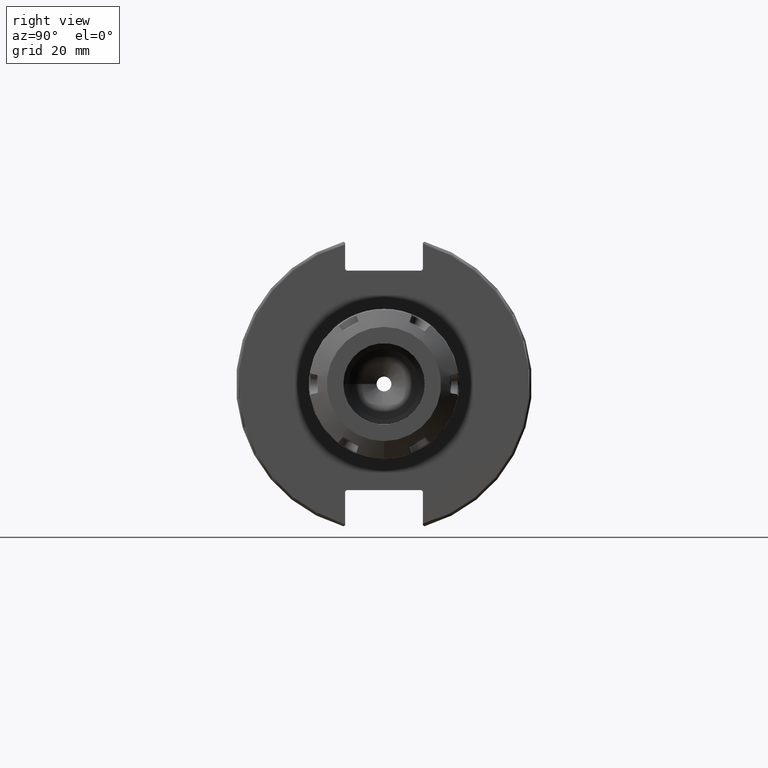
[diagram: clean part render]
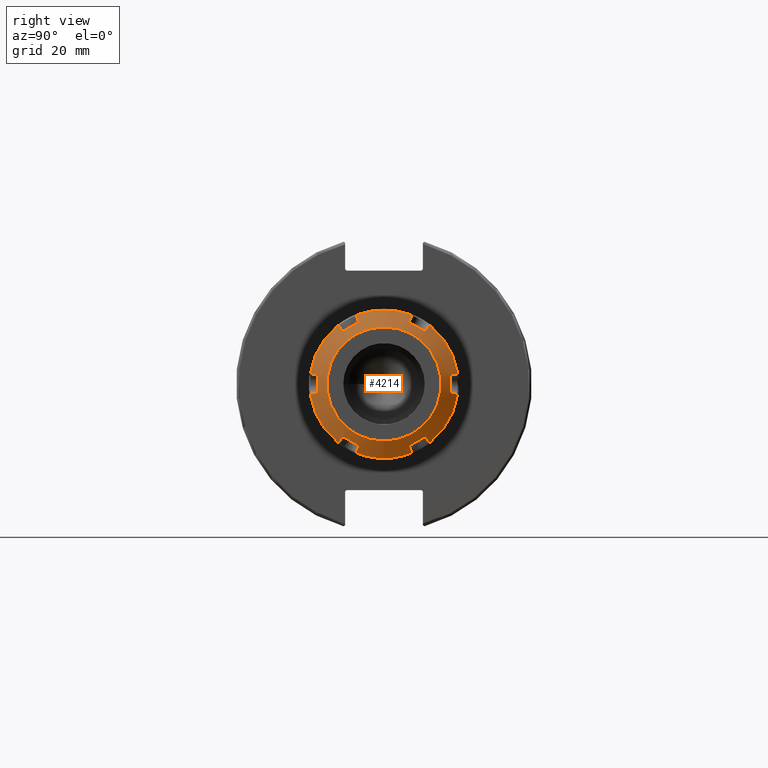
[diagram: same view with one face highlighted and labeled with its STEP entity id]
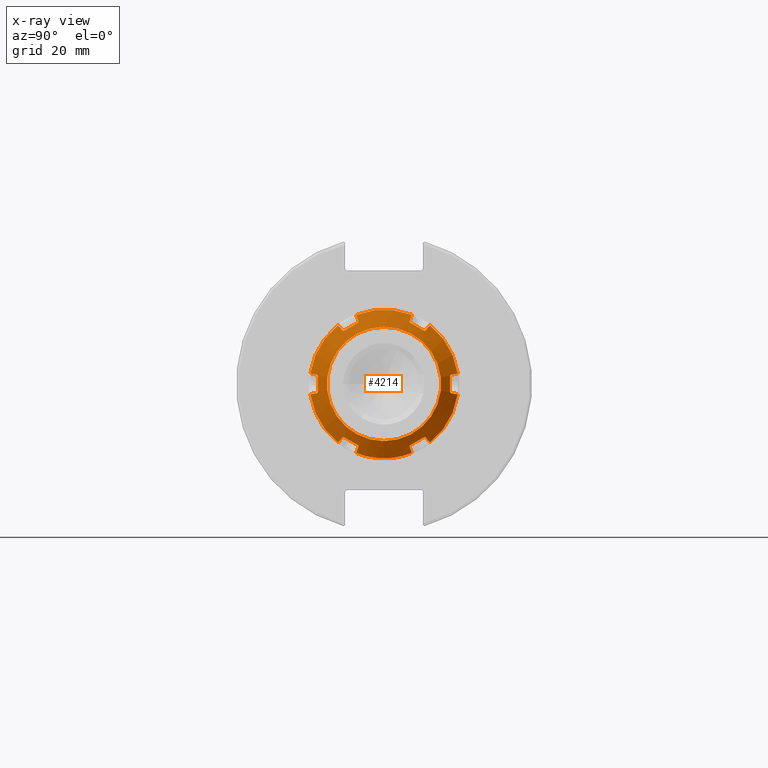
[diagram: x-ray of the same camera — body ghosted, the highlighted face saturated]
A machine part, right view. The second image highlights one B-rep face of the part: STEP entity #4214.
The next image is the same camera in x-ray: the body ghosted, the highlighted face saturated — about 0% of this face is hidden behind the body in this view.
In plain terms, the highlighted conical surface has half-angle 60 deg.
Its self-contained STEP definition (entity closure, byte-faithful):
#73=(
BOUNDED_CURVE()
B_SPLINE_CURVE(2,(#7647,#7648,#7649),.UNSPECIFIED.,.F.,.F.)
B_SPLINE_CURVE_WITH_KNOTS((3,3),(3.51476215686957,4.31734241493005),
 .UNSPECIFIED.)
CURVE()
GEOMETRIC_REPRESENTATION_ITEM()
RATIONAL_B_SPLINE_CURVE((1.47709269009182,1.48721867500282,1.47709269009183))
REPRESENTATION_ITEM('')
);
#74=(
BOUNDED_CURVE()
B_SPLINE_CURVE(2,(#7701,#7702,#7703),.UNSPECIFIED.,.F.,.F.)
B_SPLINE_CURVE_WITH_KNOTS((3,3),(3.51476215686976,4.31734241493044),
 .UNSPECIFIED.)
CURVE()
GEOMETRIC_REPRESENTATION_ITEM()
RATIONAL_B_SPLINE_CURVE((1.47709269009192,1.48721867500291,1.47709269009192))
REPRESENTATION_ITEM('')
);
#75=(
BOUNDED_CURVE()
B_SPLINE_CURVE(2,(#7755,#7756,#7757),.UNSPECIFIED.,.F.,.F.)
B_SPLINE_CURVE_WITH_KNOTS((3,3),(3.51476215686984,4.31734241493033),
 .UNSPECIFIED.)
CURVE()
GEOMETRIC_REPRESENTATION_ITEM()
RATIONAL_B_SPLINE_CURVE((1.47709269009183,1.48721867500282,1.47709269009182))
REPRESENTATION_ITEM('')
);
#76=(
BOUNDED_CURVE()
B_SPLINE_CURVE(2,(#7809,#7810,#7811),.UNSPECIFIED.,.F.,.F.)
B_SPLINE_CURVE_WITH_KNOTS((3,3),(3.51476215686957,4.31734241493005),
 .UNSPECIFIED.)
CURVE()
GEOMETRIC_REPRESENTATION_ITEM()
RATIONAL_B_SPLINE_CURVE((1.47709269009182,1.48721867500282,1.47709269009183))
REPRESENTATION_ITEM('')
);
#77=(
BOUNDED_CURVE()
B_SPLINE_CURVE(2,(#7863,#7864,#7865),.UNSPECIFIED.,.F.,.F.)
B_SPLINE_CURVE_WITH_KNOTS((3,3),(3.51476215686976,4.31734241493044),
 .UNSPECIFIED.)
CURVE()
GEOMETRIC_REPRESENTATION_ITEM()
RATIONAL_B_SPLINE_CURVE((1.47709269009192,1.48721867500291,1.47709269009192))
REPRESENTATION_ITEM('')
);
#78=(
BOUNDED_CURVE()
B_SPLINE_CURVE(2,(#7917,#7918,#7919),.UNSPECIFIED.,.F.,.F.)
B_SPLINE_CURVE_WITH_KNOTS((3,3),(3.51476215686984,4.31734241493033),
 .UNSPECIFIED.)
CURVE()
GEOMETRIC_REPRESENTATION_ITEM()
RATIONAL_B_SPLINE_CURVE((1.47709269009183,1.48721867500282,1.47709269009182))
REPRESENTATION_ITEM('')
);
#126=B_SPLINE_CURVE_WITH_KNOTS('',3,(#7623,#7624,#7625,#7626,#7627),
 .UNSPECIFIED.,.F.,.F.,(4,1,4),(0.,0.5,1.),.UNSPECIFIED.);
#127=B_SPLINE_CURVE_WITH_KNOTS('',3,(#7629,#7630,#7631,#7632,#7633,#7634),
 .UNSPECIFIED.,.F.,.F.,(4,1,1,4),(0.,0.3333333333333,0.6666666666667,1.),
 .UNSPECIFIED.);
#128=B_SPLINE_CURVE_WITH_KNOTS('',3,(#7636,#7637,#7638,#7639,#7640,#7641,
#7642,#7643,#7644,#7645),.UNSPECIFIED.,.F.,.F.,(4,2,2,2,4),(0.0021929011140548,
0.0216290017748505,0.0432580035497009,0.0616866380642235,0.0744888904768261),
 .UNSPECIFIED.);
#129=B_SPLINE_CURVE_WITH_KNOTS('',3,(#7651,#7652,#7653,#7654,#7655,#7656,
#7657,#7658,#7659,#7660),.UNSPECIFIED.,.F.,.F.,(4,2,2,2,4),(0.250635890627103,
0.263438143039404,0.281866777553927,0.303495779328777,0.322931879990271),
 .UNSPECIFIED.);
#130=B_SPLINE_CURVE_WITH_KNOTS('',3,(#7662,#7663,#7664,#7665,#7666,#7667),
 .UNSPECIFIED.,.F.,.F.,(4,1,1,4),(0.,0.3333333333333,0.6666666666667,1.),
 .UNSPECIFIED.);
#131=B_SPLINE_CURVE_WITH_KNOTS('',3,(#7669,#7670,#7671,#7672,#7673),
 .UNSPECIFIED.,.F.,.F.,(4,1,4),(0.,0.5,1.),.UNSPECIFIED.);
#132=B_SPLINE_CURVE_WITH_KNOTS('',3,(#7677,#7678,#7679,#7680,#7681),
 .UNSPECIFIED.,.F.,.F.,(4,1,4),(0.,0.5,1.),.UNSPECIFIED.);
#133=B_SPLINE_CURVE_WITH_KNOTS('',3,(#7683,#7684,#7685,#7686,#7687,#7688),
 .UNSPECIFIED.,.F.,.F.,(4,1,1,4),(0.,0.3333333333333,0.6666666666667,1.),
 .UNSPECIFIED.);
#134=B_SPLINE_CURVE_WITH_KNOTS('',3,(#7690,#7691,#7692,#7693,#7694,#7695,
#7696,#7697,#7698,#7699),.UNSPECIFIED.,.F.,.F.,(4,2,2,2,4),(0.00219290111341628,
0.0216290017748504,0.0432580035497007,0.0616866380642232,0.074488890476436),
 .UNSPECIFIED.);
#135=B_SPLINE_CURVE_WITH_KNOTS('',3,(#7705,#7706,#7707,#7708,#7709,#7710,
#7711,#7712,#7713,#7714),.UNSPECIFIED.,.F.,.F.,(4,2,2,2,4),(0.250635890627191,
0.263438143039404,0.281866777553927,0.303495779328777,0.32293187999021),
 .UNSPECIFIED.);
#136=B_SPLINE_CURVE_WITH_KNOTS('',3,(#7716,#7717,#7718,#7719,#7720,#7721),
 .UNSPECIFIED.,.F.,.F.,(4,1,1,4),(0.,0.3333333333333,0.6666666666667,1.),
 .UNSPECIFIED.);
#137=B_SPLINE_CURVE_WITH_KNOTS('',3,(#7723,#7724,#7725,#7726,#7727),
 .UNSPECIFIED.,.F.,.F.,(4,1,4),(0.,0.5,1.),.UNSPECIFIED.);
#138=B_SPLINE_CURVE_WITH_KNOTS('',3,(#7731,#7732,#7733,#7734,#7735),
 .UNSPECIFIED.,.F.,.F.,(4,1,4),(0.,0.5,1.),.UNSPECIFIED.);
#139=B_SPLINE_CURVE_WITH_KNOTS('',3,(#7737,#7738,#7739,#7740,#7741,#7742),
 .UNSPECIFIED.,.F.,.F.,(4,1,1,4),(0.,0.3333333333333,0.6666666666667,1.),
 .UNSPECIFIED.);
#140=B_SPLINE_CURVE_WITH_KNOTS('',3,(#7744,#7745,#7746,#7747,#7748,#7749,
#7750,#7751,#7752,#7753),.UNSPECIFIED.,.F.,.F.,(4,2,2,2,4),(0.00219290111335722,
0.0216290017748503,0.0432580035497006,0.0616866380642232,0.0744888904765242),
 .UNSPECIFIED.);
#141=B_SPLINE_CURVE_WITH_KNOTS('',3,(#7759,#7760,#7761,#7762,#7763,#7764,
#7765,#7766,#7767,#7768),.UNSPECIFIED.,.F.,.F.,(4,2,2,2,4),(0.250635890626801,
0.263438143039404,0.281866777553926,0.303495779328777,0.322931879989572),
 .UNSPECIFIED.);
#142=B_SPLINE_CURVE_WITH_KNOTS('',3,(#7770,#7771,#7772,#7773,#7774,#7775),
 .UNSPECIFIED.,.F.,.F.,(4,1,1,4),(0.,0.3333333333333,0.6666666666667,1.),
 .UNSPECIFIED.);
#143=B_SPLINE_CURVE_WITH_KNOTS('',3,(#7777,#7778,#7779,#7780,#7781),
 .UNSPECIFIED.,.F.,.F.,(4,1,4),(0.,0.5,1.),.UNSPECIFIED.);
#144=B_SPLINE_CURVE_WITH_KNOTS('',3,(#7785,#7786,#7787,#7788,#7789),
 .UNSPECIFIED.,.F.,.F.,(4,1,4),(0.,0.5,1.),.UNSPECIFIED.);
#145=B_SPLINE_CURVE_WITH_KNOTS('',3,(#7791,#7792,#7793,#7794,#7795,#7796),
 .UNSPECIFIED.,.F.,.F.,(4,1,1,4),(0.,0.3333333333333,0.6666666666667,1.),
 .UNSPECIFIED.);
#146=B_SPLINE_CURVE_WITH_KNOTS('',3,(#7798,#7799,#7800,#7801,#7802,#7803,
#7804,#7805,#7806,#7807),.UNSPECIFIED.,.F.,.F.,(4,2,2,2,4),(0.0021929011140548,
0.0216290017748505,0.0432580035497009,0.0616866380642235,0.0744888904768256),
 .UNSPECIFIED.);
#147=B_SPLINE_CURVE_WITH_KNOTS('',3,(#7813,#7814,#7815,#7816,#7817,#7818,
#7819,#7820,#7821,#7822),.UNSPECIFIED.,.F.,.F.,(4,2,2,2,4),(0.250635890627103,
0.263438143039404,0.281866777553927,0.303495779328777,0.322931879990271),
 .UNSPECIFIED.);
#148=B_SPLINE_CURVE_WITH_KNOTS('',3,(#7824,#7825,#7826,#7827,#7828,#7829),
 .UNSPECIFIED.,.F.,.F.,(4,1,1,4),(0.,0.3333333333333,0.6666666666667,1.),
 .UNSPECIFIED.);
#149=B_SPLINE_CURVE_WITH_KNOTS('',3,(#7831,#7832,#7833,#7834,#7835),
 .UNSPECIFIED.,.F.,.F.,(4,1,4),(0.,0.5,1.),.UNSPECIFIED.);
#150=B_SPLINE_CURVE_WITH_KNOTS('',3,(#7839,#7840,#7841,#7842,#7843),
 .UNSPECIFIED.,.F.,.F.,(4,1,4),(0.,0.5,1.),.UNSPECIFIED.);
#151=B_SPLINE_CURVE_WITH_KNOTS('',3,(#7845,#7846,#7847,#7848,#7849,#7850),
 .UNSPECIFIED.,.F.,.F.,(4,1,1,4),(0.,0.3333333333333,0.6666666666667,1.),
 .UNSPECIFIED.);
#152=B_SPLINE_CURVE_WITH_KNOTS('',3,(#7852,#7853,#7854,#7855,#7856,#7857,
#7858,#7859,#7860,#7861),.UNSPECIFIED.,.F.,.F.,(4,2,2,2,4),(0.00219290111341628,
0.0216290017748504,0.0432580035497007,0.0616866380642232,0.074488890476436),
 .UNSPECIFIED.);
#153=B_SPLINE_CURVE_WITH_KNOTS('',3,(#7867,#7868,#7869,#7870,#7871,#7872,
#7873,#7874,#7875,#7876),.UNSPECIFIED.,.F.,.F.,(4,2,2,2,4),(0.250635890627191,
0.263438143039404,0.281866777553927,0.303495779328777,0.32293187999021),
 .UNSPECIFIED.);
#154=B_SPLINE_CURVE_WITH_KNOTS('',3,(#7878,#7879,#7880,#7881,#7882,#7883),
 .UNSPECIFIED.,.F.,.F.,(4,1,1,4),(0.,0.3333333333333,0.6666666666667,1.),
 .UNSPECIFIED.);
#155=B_SPLINE_CURVE_WITH_KNOTS('',3,(#7885,#7886,#7887,#7888,#7889),
 .UNSPECIFIED.,.F.,.F.,(4,1,4),(0.,0.5,1.),.UNSPECIFIED.);
#156=B_SPLINE_CURVE_WITH_KNOTS('',3,(#7893,#7894,#7895,#7896,#7897),
 .UNSPECIFIED.,.F.,.F.,(4,1,4),(0.,0.5,1.),.UNSPECIFIED.);
#157=B_SPLINE_CURVE_WITH_KNOTS('',3,(#7899,#7900,#7901,#7902,#7903,#7904),
 .UNSPECIFIED.,.F.,.F.,(4,1,1,4),(0.,0.3333333333333,0.6666666666667,1.),
 .UNSPECIFIED.);
#158=B_SPLINE_CURVE_WITH_KNOTS('',3,(#7906,#7907,#7908,#7909,#7910,#7911,
#7912,#7913,#7914,#7915),.UNSPECIFIED.,.F.,.F.,(4,2,2,2,4),(0.00219290111335722,
0.0216290017748503,0.0432580035497006,0.0616866380642232,0.0744888904765241),
 .UNSPECIFIED.);
#159=B_SPLINE_CURVE_WITH_KNOTS('',3,(#7921,#7922,#7923,#7924,#7925,#7926,
#7927,#7928,#7929,#7930),.UNSPECIFIED.,.F.,.F.,(4,2,2,2,4),(0.250635890626801,
0.263438143039404,0.281866777553926,0.303495779328777,0.322931879989573),
 .UNSPECIFIED.);
#160=B_SPLINE_CURVE_WITH_KNOTS('',3,(#7932,#7933,#7934,#7935,#7936,#7937),
 .UNSPECIFIED.,.F.,.F.,(4,1,1,4),(0.,0.3333333333333,0.6666666666667,1.),
 .UNSPECIFIED.);
#161=B_SPLINE_CURVE_WITH_KNOTS('',3,(#7939,#7940,#7941,#7942,#7943),
 .UNSPECIFIED.,.F.,.F.,(4,1,4),(0.,0.5,1.),.UNSPECIFIED.);
#624=FACE_OUTER_BOUND('',#931,.T.);
#931=EDGE_LOOP('',(#3615,#3616,#3617,#3618,#3619,#3620,#3621,#3622,#3623,
#3624,#3625,#3626,#3627,#3628,#3629,#3630,#3631,#3632,#3633,#3634,#3635,
#3636,#3637,#3638,#3639,#3640,#3641,#3642,#3643,#3644,#3645,#3646,#3647,
#3648,#3649,#3650,#3651,#3652,#3653,#3654,#3655,#3656,#3657,#3658,#3659,
#3660,#3661,#3662,#3663,#3664,#3665,#3666));
#1167=LINE('',#7945,#1409);
#1409=VECTOR('',#5875,21.87499999999);
#1682=CIRCLE('',#4795,19.);
#1683=CIRCLE('',#4797,24.75);
#1684=CIRCLE('',#4798,24.75);
#1685=CIRCLE('',#4799,24.75);
#1686=CIRCLE('',#4800,24.75);
#1687=CIRCLE('',#4801,24.75);
#1688=CIRCLE('',#4802,24.75);
#1689=CIRCLE('',#4803,24.75);
#2014=VERTEX_POINT('',#7616);
#2015=VERTEX_POINT('',#7619);
#2016=VERTEX_POINT('',#7620);
#2017=VERTEX_POINT('',#7622);
#2018=VERTEX_POINT('',#7628);
#2019=VERTEX_POINT('',#7635);
#2020=VERTEX_POINT('',#7646);
#2021=VERTEX_POINT('',#7650);
#2022=VERTEX_POINT('',#7661);
#2023=VERTEX_POINT('',#7668);
#2024=VERTEX_POINT('',#7674);
#2025=VERTEX_POINT('',#7676);
#2026=VERTEX_POINT('',#7682);
#2027=VERTEX_POINT('',#7689);
#2028=VERTEX_POINT('',#7700);
#2029=VERTEX_POINT('',#7704);
#2030=VERTEX_POINT('',#7715);
#2031=VERTEX_POINT('',#7722);
#2032=VERTEX_POINT('',#7728);
#2033=VERTEX_POINT('',#7730);
#2034=VERTEX_POINT('',#7736);
#2035=VERTEX_POINT('',#7743);
#2036=VERTEX_POINT('',#7754);
#2037=VERTEX_POINT('',#7758);
#2038=VERTEX_POINT('',#7769);
#2039=VERTEX_POINT('',#7776);
#2040=VERTEX_POINT('',#7782);
#2041=VERTEX_POINT('',#7784);
#2042=VERTEX_POINT('',#7790);
#2043=VERTEX_POINT('',#7797);
#2044=VERTEX_POINT('',#7808);
#2045=VERTEX_POINT('',#7812);
#2046=VERTEX_POINT('',#7823);
#2047=VERTEX_POINT('',#7830);
#2048=VERTEX_POINT('',#7836);
#2049=VERTEX_POINT('',#7838);
#2050=VERTEX_POINT('',#7844);
#2051=VERTEX_POINT('',#7851);
#2052=VERTEX_POINT('',#7862);
#2053=VERTEX_POINT('',#7866);
#2054=VERTEX_POINT('',#7877);
#2055=VERTEX_POINT('',#7884);
#2056=VERTEX_POINT('',#7890);
#2057=VERTEX_POINT('',#7892);
#2058=VERTEX_POINT('',#7898);
#2059=VERTEX_POINT('',#7905);
#2060=VERTEX_POINT('',#7916);
#2061=VERTEX_POINT('',#7920);
#2062=VERTEX_POINT('',#7931);
#2063=VERTEX_POINT('',#7938);
#2562=EDGE_CURVE('',#2014,#2014,#1682,.T.);
#2563=EDGE_CURVE('',#2015,#2016,#1683,.T.);
#2564=EDGE_CURVE('',#2015,#2017,#126,.T.);
#2565=EDGE_CURVE('',#2018,#2017,#127,.T.);
#2566=EDGE_CURVE('',#2018,#2019,#128,.T.);
#2567=EDGE_CURVE('',#2020,#2019,#73,.T.);
#2568=EDGE_CURVE('',#2020,#2021,#129,.T.);
#2569=EDGE_CURVE('',#2022,#2021,#130,.T.);
#2570=EDGE_CURVE('',#2022,#2023,#131,.T.);
#2571=EDGE_CURVE('',#2023,#2024,#1684,.T.);
#2572=EDGE_CURVE('',#2024,#2025,#132,.T.);
#2573=EDGE_CURVE('',#2026,#2025,#133,.T.);
#2574=EDGE_CURVE('',#2026,#2027,#134,.T.);
#2575=EDGE_CURVE('',#2028,#2027,#74,.T.);
#2576=EDGE_CURVE('',#2028,#2029,#135,.T.);
#2577=EDGE_CURVE('',#2030,#2029,#136,.T.);
#2578=EDGE_CURVE('',#2030,#2031,#137,.T.);
#2579=EDGE_CURVE('',#2031,#2032,#1685,.T.);
#2580=EDGE_CURVE('',#2032,#2033,#138,.T.);
#2581=EDGE_CURVE('',#2034,#2033,#139,.T.);
#2582=EDGE_CURVE('',#2034,#2035,#140,.T.);
#2583=EDGE_CURVE('',#2036,#2035,#75,.T.);
#2584=EDGE_CURVE('',#2036,#2037,#141,.T.);
#2585=EDGE_CURVE('',#2038,#2037,#142,.T.);
#2586=EDGE_CURVE('',#2038,#2039,#143,.T.);
#2587=EDGE_CURVE('',#2040,#2039,#1686,.T.);
#2588=EDGE_CURVE('',#2040,#2041,#144,.T.);
#2589=EDGE_CURVE('',#2042,#2041,#145,.T.);
#2590=EDGE_CURVE('',#2042,#2043,#146,.T.);
#2591=EDGE_CURVE('',#2044,#2043,#76,.T.);
#2592=EDGE_CURVE('',#2044,#2045,#147,.T.);
#2593=EDGE_CURVE('',#2046,#2045,#148,.T.);
#2594=EDGE_CURVE('',#2046,#2047,#149,.T.);
#2595=EDGE_CURVE('',#2047,#2048,#1687,.T.);
#2596=EDGE_CURVE('',#2048,#2049,#150,.T.);
#2597=EDGE_CURVE('',#2050,#2049,#151,.T.);
#2598=EDGE_CURVE('',#2050,#2051,#152,.T.);
#2599=EDGE_CURVE('',#2052,#2051,#77,.T.);
#2600=EDGE_CURVE('',#2052,#2053,#153,.T.);
#2601=EDGE_CURVE('',#2054,#2053,#154,.T.);
#2602=EDGE_CURVE('',#2054,#2055,#155,.T.);
#2603=EDGE_CURVE('',#2055,#2056,#1688,.T.);
#2604=EDGE_CURVE('',#2056,#2057,#156,.T.);
#2605=EDGE_CURVE('',#2058,#2057,#157,.T.);
#2606=EDGE_CURVE('',#2058,#2059,#158,.T.);
#2607=EDGE_CURVE('',#2060,#2059,#78,.T.);
#2608=EDGE_CURVE('',#2060,#2061,#159,.T.);
#2609=EDGE_CURVE('',#2062,#2061,#160,.T.);
#2610=EDGE_CURVE('',#2062,#2063,#161,.T.);
#2611=EDGE_CURVE('',#2016,#2063,#1689,.T.);
#2612=EDGE_CURVE('',#2016,#2014,#1167,.T.);
#3615=ORIENTED_EDGE('',*,*,#2563,.F.);
#3616=ORIENTED_EDGE('',*,*,#2564,.T.);
#3617=ORIENTED_EDGE('',*,*,#2565,.F.);
#3618=ORIENTED_EDGE('',*,*,#2566,.T.);
#3619=ORIENTED_EDGE('',*,*,#2567,.F.);
#3620=ORIENTED_EDGE('',*,*,#2568,.T.);
#3621=ORIENTED_EDGE('',*,*,#2569,.F.);
#3622=ORIENTED_EDGE('',*,*,#2570,.T.);
#3623=ORIENTED_EDGE('',*,*,#2571,.T.);
#3624=ORIENTED_EDGE('',*,*,#2572,.T.);
#3625=ORIENTED_EDGE('',*,*,#2573,.F.);
#3626=ORIENTED_EDGE('',*,*,#2574,.T.);
#3627=ORIENTED_EDGE('',*,*,#2575,.F.);
#3628=ORIENTED_EDGE('',*,*,#2576,.T.);
#3629=ORIENTED_EDGE('',*,*,#2577,.F.);
#3630=ORIENTED_EDGE('',*,*,#2578,.T.);
#3631=ORIENTED_EDGE('',*,*,#2579,.T.);
#3632=ORIENTED_EDGE('',*,*,#2580,.T.);
#3633=ORIENTED_EDGE('',*,*,#2581,.F.);
#3634=ORIENTED_EDGE('',*,*,#2582,.T.);
#3635=ORIENTED_EDGE('',*,*,#2583,.F.);
#3636=ORIENTED_EDGE('',*,*,#2584,.T.);
#3637=ORIENTED_EDGE('',*,*,#2585,.F.);
#3638=ORIENTED_EDGE('',*,*,#2586,.T.);
#3639=ORIENTED_EDGE('',*,*,#2587,.F.);
#3640=ORIENTED_EDGE('',*,*,#2588,.T.);
#3641=ORIENTED_EDGE('',*,*,#2589,.F.);
#3642=ORIENTED_EDGE('',*,*,#2590,.T.);
#3643=ORIENTED_EDGE('',*,*,#2591,.F.);
#3644=ORIENTED_EDGE('',*,*,#2592,.T.);
#3645=ORIENTED_EDGE('',*,*,#2593,.F.);
#3646=ORIENTED_EDGE('',*,*,#2594,.T.);
#3647=ORIENTED_EDGE('',*,*,#2595,.T.);
#3648=ORIENTED_EDGE('',*,*,#2596,.T.);
#3649=ORIENTED_EDGE('',*,*,#2597,.F.);
#3650=ORIENTED_EDGE('',*,*,#2598,.T.);
#3651=ORIENTED_EDGE('',*,*,#2599,.F.);
#3652=ORIENTED_EDGE('',*,*,#2600,.T.);
#3653=ORIENTED_EDGE('',*,*,#2601,.F.);
#3654=ORIENTED_EDGE('',*,*,#2602,.T.);
#3655=ORIENTED_EDGE('',*,*,#2603,.T.);
#3656=ORIENTED_EDGE('',*,*,#2604,.T.);
#3657=ORIENTED_EDGE('',*,*,#2605,.F.);
#3658=ORIENTED_EDGE('',*,*,#2606,.T.);
#3659=ORIENTED_EDGE('',*,*,#2607,.F.);
#3660=ORIENTED_EDGE('',*,*,#2608,.T.);
#3661=ORIENTED_EDGE('',*,*,#2609,.F.);
#3662=ORIENTED_EDGE('',*,*,#2610,.T.);
#3663=ORIENTED_EDGE('',*,*,#2611,.F.);
#3664=ORIENTED_EDGE('',*,*,#2612,.T.);
#3665=ORIENTED_EDGE('',*,*,#2562,.F.);
#3666=ORIENTED_EDGE('',*,*,#2612,.F.);
#4019=CONICAL_SURFACE('',#4796,21.87499999999,1.0471975511966);
#4214=ADVANCED_FACE('',(#624),#4019,.T.);
#4795=AXIS2_PLACEMENT_3D('',#7617,#5857,#5858);
#4796=AXIS2_PLACEMENT_3D('',#7618,#5859,#5860);
#4797=AXIS2_PLACEMENT_3D('',#7621,#5861,#5862);
#4798=AXIS2_PLACEMENT_3D('',#7675,#5863,#5864);
#4799=AXIS2_PLACEMENT_3D('',#7729,#5865,#5866);
#4800=AXIS2_PLACEMENT_3D('',#7783,#5867,#5868);
#4801=AXIS2_PLACEMENT_3D('',#7837,#5869,#5870);
#4802=AXIS2_PLACEMENT_3D('',#7891,#5871,#5872);
#4803=AXIS2_PLACEMENT_3D('',#7944,#5873,#5874);
#5857=DIRECTION('center_axis',(1.,0.,0.));
#5858=DIRECTION('ref_axis',(0.,0.,1.));
#5859=DIRECTION('center_axis',(-1.,0.,0.));
#5860=DIRECTION('ref_axis',(0.,0.,-1.));
#5861=DIRECTION('center_axis',(-1.,0.,0.));
#5862=DIRECTION('ref_axis',(0.,-0.365626291910614,0.930761738934135));
#5863=DIRECTION('center_axis',(1.,0.,0.));
#5864=DIRECTION('ref_axis',(0.,-0.623250164832195,0.782022526553194));
#5865=DIRECTION('center_axis',(1.,0.,0.));
#5866=DIRECTION('ref_axis',(0.,-0.988876456742842,-0.148739212381006));
#5867=DIRECTION('center_axis',(-1.,0.,0.));
#5868=DIRECTION('ref_axis',(0.,0.365626291910614,-0.930761738934135));
#5869=DIRECTION('center_axis',(1.,0.,0.));
#5870=DIRECTION('ref_axis',(0.,0.623250164832195,-0.782022526553194));
#5871=DIRECTION('center_axis',(1.,0.,0.));
#5872=DIRECTION('ref_axis',(0.,0.988876456742842,0.148739212381006));
#5873=DIRECTION('center_axis',(-1.,0.,0.));
#5874=DIRECTION('ref_axis',(0.,-0.365626291910614,0.930761738934135));
#5875=DIRECTION('',(0.5,-1.06057523872491E-16,-0.866025403784439));
#7616=CARTESIAN_POINT('',(11.25,0.,19.));
#7617=CARTESIAN_POINT('Origin',(11.25,0.,0.));
#7618=CARTESIAN_POINT('Origin',(9.590117976086,0.,0.));
#7619=CARTESIAN_POINT('',(7.93023595216,-9.049250724788,23.03635303862));
#7620=CARTESIAN_POINT('',(7.9302359521581,3.03100082789011E-15,24.7500000000034));
#7621=CARTESIAN_POINT('Origin',(7.93023595216,0.,0.));
#7622=CARTESIAN_POINT('',(8.067319186688,-9.192179591027,22.72376885589));
#7623=CARTESIAN_POINT('Ctrl Pts',(7.93023595216,-9.049250724788,23.03635303862));
#7624=CARTESIAN_POINT('Ctrl Pts',(7.953316779699,-9.073189986037,22.98399808325));
#7625=CARTESIAN_POINT('Ctrl Pts',(7.999244791068,-9.12095072866,22.87954575608));
#7626=CARTESIAN_POINT('Ctrl Pts',(8.04470557675,-9.168475901167,22.77560861869));
#7627=CARTESIAN_POINT('Ctrl Pts',(8.067319186688,-9.192179591027,22.72376885589));
#7628=CARTESIAN_POINT('',(9.158352391105,-8.545418276707,20.94680674902));
#7629=CARTESIAN_POINT('Ctrl Pts',(9.158352391105,-8.545418276707,20.94680674902));
#7630=CARTESIAN_POINT('Ctrl Pts',(9.038440212986,-8.616505886774,21.14211835248));
#7631=CARTESIAN_POINT('Ctrl Pts',(8.797739699423,-8.759197649026,21.53416074721));
#7632=CARTESIAN_POINT('Ctrl Pts',(8.434050555279,-8.974791288436,22.12649940327));
#7633=CARTESIAN_POINT('Ctrl Pts',(8.189853664668,-9.119545298481,22.52420777724));
#7634=CARTESIAN_POINT('Ctrl Pts',(8.067319186688,-9.192179591027,22.72376885589));
#7635=CARTESIAN_POINT('',(9.430874573907,-8.7652645871,20.34278397546));
#7636=CARTESIAN_POINT('Ctrl Pts',(9.15835239110429,-8.54541827670599,20.9468067490199));
#7637=CARTESIAN_POINT('Ctrl Pts',(9.19119712671738,-8.52594691195692,20.8933096140449));
#7638=CARTESIAN_POINT('Ctrl Pts',(9.22581604899738,-8.51482688393214,20.8330947998305));
#7639=CARTESIAN_POINT('Ctrl Pts',(9.29445479801047,-8.5157805992649,20.7042164191707));
#7640=CARTESIAN_POINT('Ctrl Pts',(9.3279557682139,-8.53075238997886,20.6353180550556));
#7641=CARTESIAN_POINT('Ctrl Pts',(9.37736091771003,-8.58080945742881,20.5218170940594));
#7642=CARTESIAN_POINT('Ctrl Pts',(9.39793108518539,-8.61569316863444,20.4685883608895));
#7643=CARTESIAN_POINT('Ctrl Pts',(9.42143915916752,-8.69153237608418,20.3922026331622));
#7644=CARTESIAN_POINT('Ctrl Pts',(9.42792730040714,-8.72731509387336,20.3646941255974));
#7645=CARTESIAN_POINT('Ctrl Pts',(9.43087457390542,-8.76526458710346,20.3427839754658));
#7646=CARTESIAN_POINT('',(9.430874573907,-13.2347354129,17.76233379105));
#7647=CARTESIAN_POINT('Ctrl Pts',(9.43087457390804,-13.2347354128814,17.7623337910653));
#7648=CARTESIAN_POINT('Ctrl Pts',(9.60443094839101,-11.0000000000022,19.0525588832588));
#7649=CARTESIAN_POINT('Ctrl Pts',(9.43087457390816,-8.76526458712295,20.3427839754522));
#7650=CARTESIAN_POINT('',(9.158352391105,-13.86775763446,17.8739526881));
#7651=CARTESIAN_POINT('Ctrl Pts',(9.43087457390979,-13.2347354128992,17.7623337910482));
#7652=CARTESIAN_POINT('Ctrl Pts',(9.42792730041141,-13.2726849061282,17.7404236409168));
#7653=CARTESIAN_POINT('Ctrl Pts',(9.42143915917186,-13.3143993313932,17.7231891520779));
#7654=CARTESIAN_POINT('Ctrl Pts',(9.39793108518996,-13.4184709158154,17.6957033356874));
#7655=CARTESIAN_POINT('Ctrl Pts',(9.37736091771461,-13.4820102065547,17.69210752219));
#7656=CARTESIAN_POINT('Ctrl Pts',(9.32795576821848,-13.6053334558563,17.7055073106375));
#7657=CARTESIAN_POINT('Ctrl Pts',(9.29445479801504,-13.6724870848161,17.7269905415966));
#7658=CARTESIAN_POINT('Ctrl Pts',(9.22581604900079,-13.7845758941345,17.7906037902214));
#7659=CARTESIAN_POINT('Ctrl Pts',(9.19119712671946,-13.8311634389173,17.8303414240907));
#7660=CARTESIAN_POINT('Ctrl Pts',(9.15835239110532,-13.8677576344614,17.873952688099));
#7661=CARTESIAN_POINT('',(8.067319186688,-15.08327130341,19.32254546992));
#7662=CARTESIAN_POINT('Ctrl Pts',(8.067319186688,-15.08327130341,19.32254546992));
#7663=CARTESIAN_POINT('Ctrl Pts',(8.189820037069,-14.94680094833,19.15990643397));
#7664=CARTESIAN_POINT('Ctrl Pts',(8.433972092865,-14.67480234824,18.83575112514));
#7665=CARTESIAN_POINT('Ctrl Pts',(8.797661267953,-14.26961881374,18.35287219224));
#7666=CARTESIAN_POINT('Ctrl Pts',(9.038406600502,-14.00139608927,18.03321679673));
#7667=CARTESIAN_POINT('Ctrl Pts',(9.158352391105,-13.86775763446,17.8739526881));
#7668=CARTESIAN_POINT('',(7.93023595216,-15.4254415796,19.35505753219));
#7669=CARTESIAN_POINT('Ctrl Pts',(8.067319186688,-15.08327130341,19.32254546992));
#7670=CARTESIAN_POINT('Ctrl Pts',(8.044725340155,-15.13996810573,19.32793264145));
#7671=CARTESIAN_POINT('Ctrl Pts',(7.99928450041,-15.25369337115,19.33873849797));
#7672=CARTESIAN_POINT('Ctrl Pts',(7.95333672401,-15.36808170532,19.34960735743));
#7673=CARTESIAN_POINT('Ctrl Pts',(7.93023595216,-15.4254415796,19.35505753219));
#7674=CARTESIAN_POINT('',(7.93023595216,-24.47469230439,3.681295506429));
#7675=CARTESIAN_POINT('Origin',(7.93023595216,0.,0.));
#7676=CARTESIAN_POINT('',(8.067319186688,-24.27545089444,3.401223385967));
#7677=CARTESIAN_POINT('Ctrl Pts',(7.93023595216,-24.47469230439,3.681295506429));
#7678=CARTESIAN_POINT('Ctrl Pts',(7.953305715115,-24.44133721122,3.634408508021));
#7679=CARTESIAN_POINT('Ctrl Pts',(7.999222761311,-24.37477523445,3.540842848246));
#7680=CARTESIAN_POINT('Ctrl Pts',(8.044694612529,-24.30850962179,3.447693785227));
#7681=CARTESIAN_POINT('Ctrl Pts',(8.067319186688,-24.27545089444,3.401223385967));
#7682=CARTESIAN_POINT('',(9.158352391105,-22.41317591117,3.072854060917));
#7683=CARTESIAN_POINT('Ctrl Pts',(9.158352391105,-22.41317591117,3.072854060917));
#7684=CARTESIAN_POINT('Ctrl Pts',(9.038441052253,-22.61786309384,3.108945933827));
#7685=CARTESIAN_POINT('Ctrl Pts',(8.797741657643,-23.02872573823,3.1813921034));
#7686=CARTESIAN_POINT('Ctrl Pts',(8.434052503311,-23.64950289927,3.290851865898));
#7687=CARTESIAN_POINT('Ctrl Pts',(8.189854499506,-24.06630735955,3.364345737925));
#7688=CARTESIAN_POINT('Ctrl Pts',(8.067319186688,-24.27545089444,3.401223385967));
#7689=CARTESIAN_POINT('',(9.430874573907,-22.,2.580450184411));
#7690=CARTESIAN_POINT('Ctrl Pts',(9.15835239110354,-22.413175911169,3.07285406091755));
#7691=CARTESIAN_POINT('Ctrl Pts',(9.19119712671759,-22.3571103508747,3.06296818994941));
#7692=CARTESIAN_POINT('Ctrl Pts',(9.2258160489988,-22.2994027780665,3.04249100960221));
#7693=CARTESIAN_POINT('Ctrl Pts',(9.29445479801296,-22.1882676840811,2.97722587756512));
#7694=CARTESIAN_POINT('Ctrl Pts',(9.3279557682164,-22.1360858458352,2.92981074440912));
#7695=CARTESIAN_POINT('Ctrl Pts',(9.37736091771253,-22.0628196639836,2.82970957186047));
#7696=CARTESIAN_POINT('Ctrl Pts',(9.39793108518788,-22.0341640844499,2.77288502519313));
#7697=CARTESIAN_POINT('Ctrl Pts',(9.42143915916971,-22.0059317074768,2.66901348107646));
#7698=CARTESIAN_POINT('Ctrl Pts',(9.42792730040924,-22.,2.62427048467359));
#7699=CARTESIAN_POINT('Ctrl Pts',(9.43087457390764,-22.,2.58045018441104));
#7700=CARTESIAN_POINT('',(9.430874573907,-22.,-2.580450184411));
#7701=CARTESIAN_POINT('Ctrl Pts',(9.43087457390924,-22.,-2.58045018438732));
#7702=CARTESIAN_POINT('Ctrl Pts',(9.60443094839223,-22.,-7.54951656745106E-15));
#7703=CARTESIAN_POINT('Ctrl Pts',(9.43087457390924,-22.,2.58045018438731));
#7704=CARTESIAN_POINT('',(9.158352391105,-22.41317591117,-3.072854060917));
#7705=CARTESIAN_POINT('Ctrl Pts',(9.43087457390764,-22.,-2.58045018441104));
#7706=CARTESIAN_POINT('Ctrl Pts',(9.42792730040924,-22.,-2.62427048467359));
#7707=CARTESIAN_POINT('Ctrl Pts',(9.42143915916971,-22.0059317074768,-2.66901348107646));
#7708=CARTESIAN_POINT('Ctrl Pts',(9.39793108518788,-22.0341640844499,-2.77288502519313));
#7709=CARTESIAN_POINT('Ctrl Pts',(9.37736091771252,-22.0628196639836,-2.82970957186047));
#7710=CARTESIAN_POINT('Ctrl Pts',(9.32795576821639,-22.1360858458352,-2.92981074440912));
#7711=CARTESIAN_POINT('Ctrl Pts',(9.29445479801296,-22.1882676840811,-2.97722587756512));
#7712=CARTESIAN_POINT('Ctrl Pts',(9.22581604899881,-22.2994027780665,-3.04249100960221));
#7713=CARTESIAN_POINT('Ctrl Pts',(9.1911971267176,-22.3571103508747,-3.06296818994941));
#7714=CARTESIAN_POINT('Ctrl Pts',(9.15835239110354,-22.413175911169,-3.07285406091755));
#7715=CARTESIAN_POINT('',(8.067319186688,-24.27545089444,-3.401223385967));
#7716=CARTESIAN_POINT('Ctrl Pts',(8.067319186688,-24.27545089444,-3.401223385967));
#7717=CARTESIAN_POINT('Ctrl Pts',(8.189820862073,-24.06636477199,-3.364355861288));
#7718=CARTESIAN_POINT('Ctrl Pts',(8.433974017959,-23.649636862,-3.290875487143));
#7719=CARTESIAN_POINT('Ctrl Pts',(8.797663203698,-23.02885965358,-3.181415716288));
#7720=CARTESIAN_POINT('Ctrl Pts',(9.03840743014,-22.61792048637,-3.10895605368));
#7721=CARTESIAN_POINT('Ctrl Pts',(9.158352391105,-22.41317591117,-3.072854060917));
#7722=CARTESIAN_POINT('',(7.93023595216,-24.47469230439,-3.681295506429));
#7723=CARTESIAN_POINT('Ctrl Pts',(8.067319186688,-24.27545089444,-3.401223385967));
#7724=CARTESIAN_POINT('Ctrl Pts',(8.044749094101,-24.30843001404,-3.447581881225));
#7725=CARTESIAN_POINT('Ctrl Pts',(7.999332227532,-24.37461613434,-3.540619202443));
#7726=CARTESIAN_POINT('Ctrl Pts',(7.95336069539,-24.44125771876,-3.634296766081));
#7727=CARTESIAN_POINT('Ctrl Pts',(7.93023595216,-24.47469230439,-3.681295506429));
#7728=CARTESIAN_POINT('',(7.93023595216,-15.4254415796,-19.35505753219));
#7729=CARTESIAN_POINT('Origin',(7.93023595216,0.,0.));
#7730=CARTESIAN_POINT('',(8.067319186688,-15.08327130341,-19.32254546992));
#7731=CARTESIAN_POINT('Ctrl Pts',(7.93023595216,-15.4254415796,-19.35505753219));
#7732=CARTESIAN_POINT('Ctrl Pts',(7.953379780775,-15.36797479415,-19.34959719903));
#7733=CARTESIAN_POINT('Ctrl Pts',(7.999370226496,-15.25347939375,-19.33871816643));
#7734=CARTESIAN_POINT('Ctrl Pts',(8.04476800637,-15.13986103951,-19.32792246831));
#7735=CARTESIAN_POINT('Ctrl Pts',(8.067319186688,-15.08327130341,-19.32254546992));
#7736=CARTESIAN_POINT('',(9.158352391105,-13.86775763446,-17.8739526881));
#7737=CARTESIAN_POINT('Ctrl Pts',(9.158352391105,-13.86775763446,-17.8739526881));
#7738=CARTESIAN_POINT('Ctrl Pts',(9.038440632719,-14.00135817203,-18.03317160872));
#7739=CARTESIAN_POINT('Ctrl Pts',(8.797740678764,-14.26953034065,-18.3527667541));
#7740=CARTESIAN_POINT('Ctrl Pts',(8.434051529518,-14.67471385047,-18.83564565759));
#7741=CARTESIAN_POINT('Ctrl Pts',(8.189854082183,-14.94676302084,-19.15986123375));
#7742=CARTESIAN_POINT('Ctrl Pts',(8.067319186688,-15.08327130341,-19.32254546992));
#7743=CARTESIAN_POINT('',(9.430874573907,-13.2347354129,-17.76233379105));
#7744=CARTESIAN_POINT('Ctrl Pts',(9.15835239110532,-13.8677576344614,-17.873952688099));
#7745=CARTESIAN_POINT('Ctrl Pts',(9.19119712671947,-13.8311634389173,-17.8303414240907));
#7746=CARTESIAN_POINT('Ctrl Pts',(9.22581604900079,-13.7845758941345,-17.7906037902214));
#7747=CARTESIAN_POINT('Ctrl Pts',(9.29445479801504,-13.6724870848161,-17.7269905415966));
#7748=CARTESIAN_POINT('Ctrl Pts',(9.32795576821848,-13.6053334558563,-17.7055073106375));
#7749=CARTESIAN_POINT('Ctrl Pts',(9.37736091771461,-13.4820102065547,-17.69210752219));
#7750=CARTESIAN_POINT('Ctrl Pts',(9.39793108518996,-13.4184709158154,-17.6957033356874));
#7751=CARTESIAN_POINT('Ctrl Pts',(9.42143915917186,-13.3143993313932,-17.7231891520779));
#7752=CARTESIAN_POINT('Ctrl Pts',(9.42792730041141,-13.2726849061282,-17.7404236409168));
#7753=CARTESIAN_POINT('Ctrl Pts',(9.43087457390979,-13.2347354128992,-17.7623337910482));
#7754=CARTESIAN_POINT('',(9.430874573907,-8.7652645871,-20.34278397546));
#7755=CARTESIAN_POINT('Ctrl Pts',(9.43087457390816,-8.76526458712292,-20.3427839754522));
#7756=CARTESIAN_POINT('Ctrl Pts',(9.60443094839101,-11.0000000000022,-19.0525588832588));
#7757=CARTESIAN_POINT('Ctrl Pts',(9.43087457390804,-13.2347354128814,-17.7623337910653));
#7758=CARTESIAN_POINT('',(9.158352391105,-8.545418276707,-20.94680674902));
#7759=CARTESIAN_POINT('Ctrl Pts',(9.43087457390542,-8.76526458710346,-20.3427839754658));
#7760=CARTESIAN_POINT('Ctrl Pts',(9.42792730040714,-8.72731509387336,-20.3646941255974));
#7761=CARTESIAN_POINT('Ctrl Pts',(9.42143915916752,-8.69153237608418,-20.3922026331622));
#7762=CARTESIAN_POINT('Ctrl Pts',(9.39793108518539,-8.61569316863444,-20.4685883608895));
#7763=CARTESIAN_POINT('Ctrl Pts',(9.37736091771003,-8.58080945742881,-20.5218170940594));
#7764=CARTESIAN_POINT('Ctrl Pts',(9.3279557682139,-8.53075238997886,-20.6353180550556));
#7765=CARTESIAN_POINT('Ctrl Pts',(9.29445479801047,-8.5157805992649,-20.7042164191707));
#7766=CARTESIAN_POINT('Ctrl Pts',(9.22581604899738,-8.51482688393214,-20.8330947998305));
#7767=CARTESIAN_POINT('Ctrl Pts',(9.19119712671738,-8.52594691195692,-20.8933096140449));
#7768=CARTESIAN_POINT('Ctrl Pts',(9.15835239110429,-8.54541827670599,-20.9468067490199));
#7769=CARTESIAN_POINT('',(8.067319186688,-9.192179591027,-22.72376885589));
#7770=CARTESIAN_POINT('Ctrl Pts',(8.067319186688,-9.192179591027,-22.72376885589));
#7771=CARTESIAN_POINT('Ctrl Pts',(8.189820449666,-9.11956498721,-22.52426187158));
#7772=CARTESIAN_POINT('Ctrl Pts',(8.433973055635,-8.974837228894,-22.12662562364));
#7773=CARTESIAN_POINT('Ctrl Pts',(8.797662236057,-8.759243570111,-21.53428691436));
#7774=CARTESIAN_POINT('Ctrl Pts',(9.03840701542,-8.616525567308,-21.1421724243));
#7775=CARTESIAN_POINT('Ctrl Pts',(9.158352391105,-8.545418276707,-20.94680674902));
#7776=CARTESIAN_POINT('',(7.93023595216,-9.049250724788,-23.03635303862));
#7777=CARTESIAN_POINT('Ctrl Pts',(8.067319186688,-9.192179591027,-22.72376885589));
#7778=CARTESIAN_POINT('Ctrl Pts',(8.044746800182,-9.168519111758,-22.7755141175));
#7779=CARTESIAN_POINT('Ctrl Pts',(7.999327618532,-9.121037087219,-22.87935689066));
#7780=CARTESIAN_POINT('Ctrl Pts',(7.953358380474,-9.073233134049,-22.98390371893));
#7781=CARTESIAN_POINT('Ctrl Pts',(7.93023595216,-9.049250724788,-23.03635303862));
#7782=CARTESIAN_POINT('',(7.93023595216,9.049250724788,-23.03635303862));
#7783=CARTESIAN_POINT('Origin',(7.93023595216,0.,0.));
#7784=CARTESIAN_POINT('',(8.067319186688,9.192179591027,-22.72376885589));
#7785=CARTESIAN_POINT('Ctrl Pts',(7.93023595216,9.049250724788,-23.03635303862));
#7786=CARTESIAN_POINT('Ctrl Pts',(7.953364010072,9.073238973026,-22.98389094913));
#7787=CARTESIAN_POINT('Ctrl Pts',(7.999338827066,9.121048773642,-22.87933133256));
#7788=CARTESIAN_POINT('Ctrl Pts',(8.044752378717,9.168524959203,-22.77550132919));
#7789=CARTESIAN_POINT('Ctrl Pts',(8.067319186688,9.192179591027,-22.72376885589));
#7790=CARTESIAN_POINT('',(9.158352391105,8.545418276707,-20.94680674902));
#7791=CARTESIAN_POINT('Ctrl Pts',(9.158352391105,8.545418276707,-20.94680674902));
#7792=CARTESIAN_POINT('Ctrl Pts',(9.038440632719,8.616505637944,-21.14211766883));
#7793=CARTESIAN_POINT('Ctrl Pts',(8.797740678764,8.759197068462,-21.53415915213));
#7794=CARTESIAN_POINT('Ctrl Pts',(8.434051529518,8.974790710924,-22.12649781657));
#7795=CARTESIAN_POINT('Ctrl Pts',(8.189854082183,9.119545050993,-22.52420709727));
#7796=CARTESIAN_POINT('Ctrl Pts',(8.067319186688,9.192179591027,-22.72376885589));
#7797=CARTESIAN_POINT('',(9.430874573907,8.7652645871,-20.34278397546));
#7798=CARTESIAN_POINT('Ctrl Pts',(9.15835239110429,8.54541827670599,-20.9468067490199));
#7799=CARTESIAN_POINT('Ctrl Pts',(9.19119712671738,8.52594691195692,-20.8933096140449));
#7800=CARTESIAN_POINT('Ctrl Pts',(9.22581604899738,8.51482688393214,-20.8330947998305));
#7801=CARTESIAN_POINT('Ctrl Pts',(9.29445479801047,8.5157805992649,-20.7042164191707));
#7802=CARTESIAN_POINT('Ctrl Pts',(9.3279557682139,8.53075238997886,-20.6353180550556));
#7803=CARTESIAN_POINT('Ctrl Pts',(9.37736091771003,8.58080945742881,-20.5218170940594));
#7804=CARTESIAN_POINT('Ctrl Pts',(9.39793108518538,8.61569316863444,-20.4685883608895));
#7805=CARTESIAN_POINT('Ctrl Pts',(9.42143915916751,8.69153237608418,-20.3922026331622));
#7806=CARTESIAN_POINT('Ctrl Pts',(9.42792730040714,8.72731509387336,-20.3646941255974));
#7807=CARTESIAN_POINT('Ctrl Pts',(9.43087457390542,8.76526458710346,-20.3427839754658));
#7808=CARTESIAN_POINT('',(9.430874573907,13.2347354129,-17.76233379105));
#7809=CARTESIAN_POINT('Ctrl Pts',(9.43087457390804,13.2347354128814,-17.7623337910653));
#7810=CARTESIAN_POINT('Ctrl Pts',(9.60443094839101,11.0000000000022,-19.0525588832588));
#7811=CARTESIAN_POINT('Ctrl Pts',(9.43087457390816,8.76526458712295,-20.3427839754522));
#7812=CARTESIAN_POINT('',(9.158352391105,13.86775763446,-17.8739526881));
#7813=CARTESIAN_POINT('Ctrl Pts',(9.43087457390979,13.2347354128992,-17.7623337910482));
#7814=CARTESIAN_POINT('Ctrl Pts',(9.42792730041141,13.2726849061282,-17.7404236409168));
#7815=CARTESIAN_POINT('Ctrl Pts',(9.42143915917186,13.3143993313932,-17.7231891520779));
#7816=CARTESIAN_POINT('Ctrl Pts',(9.39793108518996,13.4184709158154,-17.6957033356874));
#7817=CARTESIAN_POINT('Ctrl Pts',(9.37736091771461,13.4820102065547,-17.69210752219));
#7818=CARTESIAN_POINT('Ctrl Pts',(9.32795576821848,13.6053334558563,-17.7055073106375));
#7819=CARTESIAN_POINT('Ctrl Pts',(9.29445479801504,13.6724870848161,-17.7269905415966));
#7820=CARTESIAN_POINT('Ctrl Pts',(9.22581604900079,13.7845758941345,-17.7906037902214));
#7821=CARTESIAN_POINT('Ctrl Pts',(9.19119712671946,13.8311634389173,-17.8303414240907));
#7822=CARTESIAN_POINT('Ctrl Pts',(9.15835239110532,13.8677576344614,-17.873952688099));
#7823=CARTESIAN_POINT('',(8.067319186688,15.08327130341,-19.32254546992));
#7824=CARTESIAN_POINT('Ctrl Pts',(8.067319186688,15.08327130341,-19.32254546992));
#7825=CARTESIAN_POINT('Ctrl Pts',(8.189820449666,14.94680048868,-19.15990588618));
#7826=CARTESIAN_POINT('Ctrl Pts',(8.433973055635,14.67480127565,-18.83574984687));
#7827=CARTESIAN_POINT('Ctrl Pts',(8.797662236057,14.26961773516,-18.35287090683));
#7828=CARTESIAN_POINT('Ctrl Pts',(9.03840701542,14.00139562698,-18.0332162458));
#7829=CARTESIAN_POINT('Ctrl Pts',(9.158352391105,13.86775763446,-17.8739526881));
#7830=CARTESIAN_POINT('',(7.93023595216,15.4254415796,-19.35505753219));
#7831=CARTESIAN_POINT('Ctrl Pts',(8.067319186688,15.08327130341,-19.32254546992));
#7832=CARTESIAN_POINT('Ctrl Pts',(8.044736463291,15.13994019343,-19.3279299893));
#7833=CARTESIAN_POINT('Ctrl Pts',(7.999306849361,15.25363758699,-19.33873319751));
#7834=CARTESIAN_POINT('Ctrl Pts',(7.953347948963,15.36805383344,-19.34960470912));
#7835=CARTESIAN_POINT('Ctrl Pts',(7.93023595216,15.4254415796,-19.35505753219));
#7836=CARTESIAN_POINT('',(7.93023595216,24.47469230439,-3.681295506429));
#7837=CARTESIAN_POINT('Origin',(7.93023595216,0.,0.));
#7838=CARTESIAN_POINT('',(8.067319186688,24.27545089444,-3.401223385967));
#7839=CARTESIAN_POINT('Ctrl Pts',(7.93023595216,24.47469230439,-3.681295506429));
#7840=CARTESIAN_POINT('Ctrl Pts',(7.95329907644,24.44134680966,-3.634422000468));
#7841=CARTESIAN_POINT('Ctrl Pts',(7.999209543588,24.37479444522,-3.540869852672));
#7842=CARTESIAN_POINT('Ctrl Pts',(8.04468803407,24.30851923415,-3.447707297242));
#7843=CARTESIAN_POINT('Ctrl Pts',(8.067319186688,24.27545089444,-3.401223385967));
#7844=CARTESIAN_POINT('',(9.158352391105,22.41317591117,-3.072854060917));
#7845=CARTESIAN_POINT('Ctrl Pts',(9.158352391105,22.41317591117,-3.072854060917));
#7846=CARTESIAN_POINT('Ctrl Pts',(9.038440632719,22.61786380998,-3.108946060102));
#7847=CARTESIAN_POINT('Ctrl Pts',(8.797740678764,23.02872740911,-3.18139239802));
#7848=CARTESIAN_POINT('Ctrl Pts',(8.434051529518,23.64950456139,-3.290852158975));
#7849=CARTESIAN_POINT('Ctrl Pts',(8.189854082183,24.06630807184,-3.364345863521));
#7850=CARTESIAN_POINT('Ctrl Pts',(8.067319186688,24.27545089444,-3.401223385967));
#7851=CARTESIAN_POINT('',(9.430874573907,22.,-2.580450184411));
#7852=CARTESIAN_POINT('Ctrl Pts',(9.15835239110354,22.413175911169,-3.07285406091755));
#7853=CARTESIAN_POINT('Ctrl Pts',(9.19119712671759,22.3571103508747,-3.06296818994941));
#7854=CARTESIAN_POINT('Ctrl Pts',(9.2258160489988,22.2994027780665,-3.04249100960221));
#7855=CARTESIAN_POINT('Ctrl Pts',(9.29445479801296,22.1882676840811,-2.97722587756512));
#7856=CARTESIAN_POINT('Ctrl Pts',(9.3279557682164,22.1360858458352,-2.92981074440912));
#7857=CARTESIAN_POINT('Ctrl Pts',(9.37736091771253,22.0628196639836,-2.82970957186047));
#7858=CARTESIAN_POINT('Ctrl Pts',(9.39793108518788,22.0341640844499,-2.77288502519313));
#7859=CARTESIAN_POINT('Ctrl Pts',(9.42143915916971,22.0059317074768,-2.66901348107646));
#7860=CARTESIAN_POINT('Ctrl Pts',(9.42792730040924,22.,-2.62427048467359));
#7861=CARTESIAN_POINT('Ctrl Pts',(9.43087457390764,22.,-2.58045018441104));
#7862=CARTESIAN_POINT('',(9.430874573907,22.,2.580450184411));
#7863=CARTESIAN_POINT('Ctrl Pts',(9.43087457390924,22.,2.58045018438732));
#7864=CARTESIAN_POINT('Ctrl Pts',(9.60443094839223,22.,7.54951656745106E-15));
#7865=CARTESIAN_POINT('Ctrl Pts',(9.43087457390924,22.,-2.58045018438731));
#7866=CARTESIAN_POINT('',(9.158352391105,22.41317591117,3.072854060917));
#7867=CARTESIAN_POINT('Ctrl Pts',(9.43087457390764,22.,2.58045018441104));
#7868=CARTESIAN_POINT('Ctrl Pts',(9.42792730040924,22.,2.62427048467359));
#7869=CARTESIAN_POINT('Ctrl Pts',(9.42143915916971,22.0059317074768,2.66901348107646));
#7870=CARTESIAN_POINT('Ctrl Pts',(9.39793108518788,22.0341640844499,2.77288502519313));
#7871=CARTESIAN_POINT('Ctrl Pts',(9.37736091771252,22.0628196639836,2.82970957186047));
#7872=CARTESIAN_POINT('Ctrl Pts',(9.32795576821639,22.1360858458352,2.92981074440912));
#7873=CARTESIAN_POINT('Ctrl Pts',(9.29445479801296,22.1882676840811,2.97722587756512));
#7874=CARTESIAN_POINT('Ctrl Pts',(9.22581604899881,22.2994027780665,3.04249100960221));
#7875=CARTESIAN_POINT('Ctrl Pts',(9.1911971267176,22.3571103508747,3.06296818994941));
#7876=CARTESIAN_POINT('Ctrl Pts',(9.15835239110354,22.413175911169,3.07285406091755));
#7877=CARTESIAN_POINT('',(8.067319186688,24.27545089444,3.401223385967));
#7878=CARTESIAN_POINT('Ctrl Pts',(8.067319186688,24.27545089444,3.401223385967));
#7879=CARTESIAN_POINT('Ctrl Pts',(8.189820449666,24.06636547589,3.364355985404));
#7880=CARTESIAN_POINT('Ctrl Pts',(8.433973055635,23.64963850455,3.290875776767));
#7881=CARTESIAN_POINT('Ctrl Pts',(8.797662236057,23.02886130527,3.181416007526));
#7882=CARTESIAN_POINT('Ctrl Pts',(9.03840701542,22.61792119429,3.108956178505));
#7883=CARTESIAN_POINT('Ctrl Pts',(9.158352391105,22.41317591117,3.072854060917));
#7884=CARTESIAN_POINT('',(7.93023595216,24.47469230439,3.681295506429));
#7885=CARTESIAN_POINT('Ctrl Pts',(8.067319186688,24.27545089444,3.401223385967));
#7886=CARTESIAN_POINT('Ctrl Pts',(8.044745362796,24.30843546618,3.447589545245));
#7887=CARTESIAN_POINT('Ctrl Pts',(7.999324730498,24.37462703071,3.540634519384));
#7888=CARTESIAN_POINT('Ctrl Pts',(7.953356929931,24.441263163,3.634304419003));
#7889=CARTESIAN_POINT('Ctrl Pts',(7.93023595216,24.47469230439,3.681295506429));
#7890=CARTESIAN_POINT('',(7.93023595216,15.4254415796,19.35505753219));
#7891=CARTESIAN_POINT('Origin',(7.93023595216,0.,0.));
#7892=CARTESIAN_POINT('',(8.067319186688,15.08327130341,19.32254546992));
#7893=CARTESIAN_POINT('Ctrl Pts',(7.93023595216,15.4254415796,19.35505753219));
#7894=CARTESIAN_POINT('Ctrl Pts',(7.953328461842,15.36810222052,19.34960930672));
#7895=CARTESIAN_POINT('Ctrl Pts',(7.999268050358,15.25373443127,19.33874239938));
#7896=CARTESIAN_POINT('Ctrl Pts',(8.04471715293,15.13998865069,19.32793459357));
#7897=CARTESIAN_POINT('Ctrl Pts',(8.067319186688,15.08327130341,19.32254546992));
#7898=CARTESIAN_POINT('',(9.158352391105,13.86775763446,17.8739526881));
#7899=CARTESIAN_POINT('Ctrl Pts',(9.158352391105,13.86775763446,17.8739526881));
#7900=CARTESIAN_POINT('Ctrl Pts',(9.038440212986,14.00135863968,18.03317216605));
#7901=CARTESIAN_POINT('Ctrl Pts',(8.797739699423,14.26953143175,18.35276805443));
#7902=CARTESIAN_POINT('Ctrl Pts',(8.434050555279,14.67471493583,18.83564695108));
#7903=CARTESIAN_POINT('Ctrl Pts',(8.189853664668,14.94676348597,19.15986178807));
#7904=CARTESIAN_POINT('Ctrl Pts',(8.067319186688,15.08327130341,19.32254546992));
#7905=CARTESIAN_POINT('',(9.430874573907,13.2347354129,17.76233379105));
#7906=CARTESIAN_POINT('Ctrl Pts',(9.15835239110532,13.8677576344614,17.873952688099));
#7907=CARTESIAN_POINT('Ctrl Pts',(9.19119712671947,13.8311634389173,17.8303414240907));
#7908=CARTESIAN_POINT('Ctrl Pts',(9.22581604900079,13.7845758941345,17.7906037902214));
#7909=CARTESIAN_POINT('Ctrl Pts',(9.29445479801504,13.6724870848161,17.7269905415966));
#7910=CARTESIAN_POINT('Ctrl Pts',(9.32795576821848,13.6053334558563,17.7055073106375));
#7911=CARTESIAN_POINT('Ctrl Pts',(9.37736091771461,13.4820102065547,17.69210752219));
#7912=CARTESIAN_POINT('Ctrl Pts',(9.39793108518996,13.4184709158154,17.6957033356874));
#7913=CARTESIAN_POINT('Ctrl Pts',(9.42143915917186,13.3143993313932,17.7231891520779));
#7914=CARTESIAN_POINT('Ctrl Pts',(9.42792730041141,13.2726849061282,17.7404236409168));
#7915=CARTESIAN_POINT('Ctrl Pts',(9.43087457390979,13.2347354128992,17.7623337910482));
#7916=CARTESIAN_POINT('',(9.430874573907,8.7652645871,20.34278397546));
#7917=CARTESIAN_POINT('Ctrl Pts',(9.43087457390816,8.76526458712292,20.3427839754522));
#7918=CARTESIAN_POINT('Ctrl Pts',(9.60443094839101,11.0000000000022,19.0525588832588));
#7919=CARTESIAN_POINT('Ctrl Pts',(9.43087457390804,13.2347354128814,17.7623337910653));
#7920=CARTESIAN_POINT('',(9.158352391105,8.545418276707,20.94680674902));
#7921=CARTESIAN_POINT('Ctrl Pts',(9.43087457390542,8.76526458710346,20.3427839754658));
#7922=CARTESIAN_POINT('Ctrl Pts',(9.42792730040714,8.72731509387336,20.3646941255974));
#7923=CARTESIAN_POINT('Ctrl Pts',(9.42143915916752,8.69153237608418,20.3922026331622));
#7924=CARTESIAN_POINT('Ctrl Pts',(9.39793108518539,8.61569316863443,20.4685883608895));
#7925=CARTESIAN_POINT('Ctrl Pts',(9.37736091771003,8.58080945742881,20.5218170940594));
#7926=CARTESIAN_POINT('Ctrl Pts',(9.3279557682139,8.53075238997886,20.6353180550556));
#7927=CARTESIAN_POINT('Ctrl Pts',(9.29445479801047,8.5157805992649,20.7042164191707));
#7928=CARTESIAN_POINT('Ctrl Pts',(9.22581604899738,8.51482688393214,20.8330947998305));
#7929=CARTESIAN_POINT('Ctrl Pts',(9.19119712671738,8.52594691195692,20.8933096140449));
#7930=CARTESIAN_POINT('Ctrl Pts',(9.15835239110429,8.54541827670599,20.9468067490199));
#7931=CARTESIAN_POINT('',(8.067319186688,9.192179591027,22.72376885589));
#7932=CARTESIAN_POINT('Ctrl Pts',(8.067319186688,9.192179591027,22.72376885589));
#7933=CARTESIAN_POINT('Ctrl Pts',(8.189820037069,9.119565231784,22.52426254354));
#7934=CARTESIAN_POINT('Ctrl Pts',(8.433972092865,8.974837799607,22.12662719166));
#7935=CARTESIAN_POINT('Ctrl Pts',(8.797661267953,8.759244144013,21.53428849114));
#7936=CARTESIAN_POINT('Ctrl Pts',(9.038406600502,8.616525813284,21.14217310012));
#7937=CARTESIAN_POINT('Ctrl Pts',(9.158352391105,8.545418276707,20.94680674902));
#7938=CARTESIAN_POINT('',(7.93023595216,9.049250724788,23.03635303862));
#7939=CARTESIAN_POINT('Ctrl Pts',(8.067319186688,9.192179591027,22.72376885589));
#7940=CARTESIAN_POINT('Ctrl Pts',(8.044731019267,9.16850257013,22.7755502939));
#7941=CARTESIAN_POINT('Ctrl Pts',(7.999295911063,9.121004027927,22.87942919105));
#7942=CARTESIAN_POINT('Ctrl Pts',(7.953342455106,9.073216616377,22.98393984293));
#7943=CARTESIAN_POINT('Ctrl Pts',(7.93023595216,9.049250724788,23.03635303862));
#7944=CARTESIAN_POINT('Origin',(7.93023595216,0.,0.));
#7945=CARTESIAN_POINT('',(9.590117976086,2.67891487313361E-15,21.87499999999));